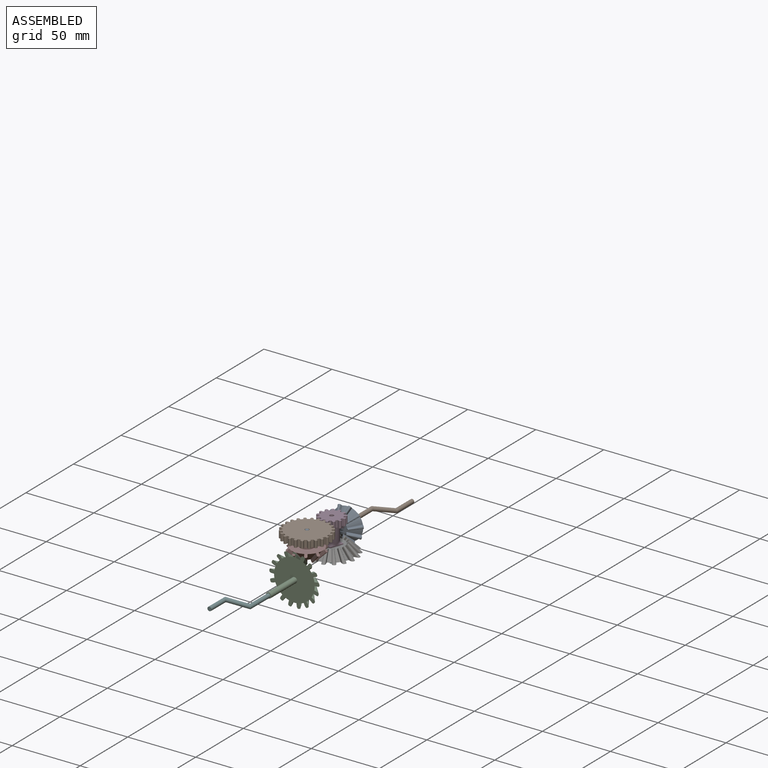
[diagram: assembled view]
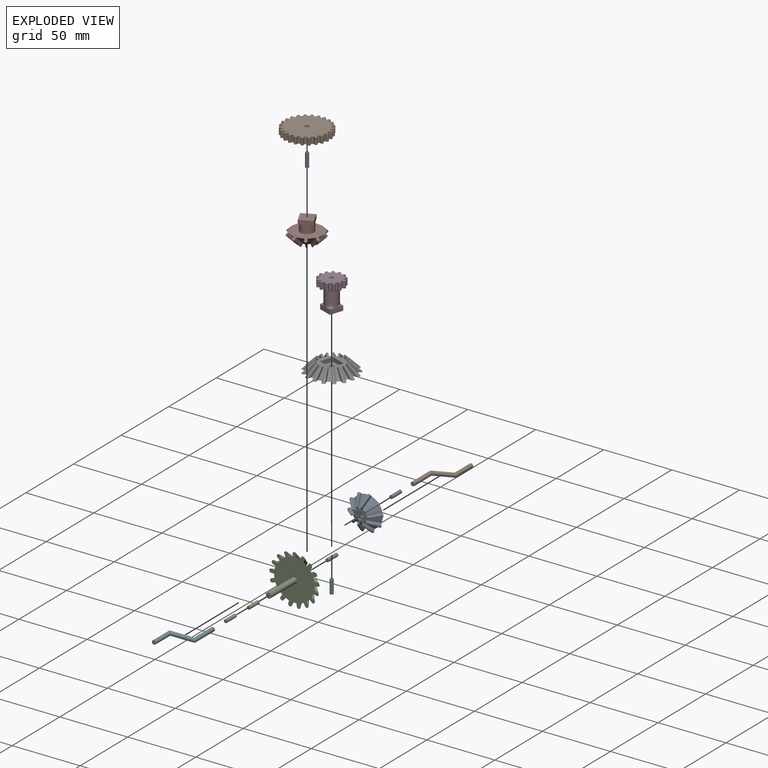
[diagram: exploded view]
GUIDED TOUR — MATED ASSEMBLY (Onshape document efb76f8cd0fd48c595d6d1e4, AutoMate assembly efb76f8cd0fd48c595d6d1e4_96255cc6fc7f05e3776eab63_294cf7662170a65281698371_default)

This assembly has 14 components, labeled P0..P13 below (a component is one placed occurrence of a part; the same part can appear more than once), held together by 10 mates. A mate is a constraint between two components; its type names the relative motion it leaves free:
  FASTENED — locks the two components together rigidly (no relative motion),
  REVOLUTE — leaves rotation about the listed axis free (a hinge).
Axis/direction vectors are unit vectors and 'through' points are millimeter coordinates, both in the assembly's world frame.

MATES
  1. FASTENED "Fastened 4": P5 <-> P2, direction (0.005, 1.000, 0.000) through (-14.91, -80.79, -7.08) mm
  2. REVOLUTE "Revolute 6": P2 <-> P4, axis (-0.005, -1.000, 0.000) through (-14.78, -53.79, -7.08) mm
  3. REVOLUTE "Revolute 3": P1 <-> P8, axis (0.000, 0.000, 1.000) through (-14.04, -41.55, 22.09) mm
  4. FASTENED "Fastened 1": P3 <-> P6, direction (0.000, 0.000, -1.000) through (-13.25, -16.80, 0.70) mm
  5. FASTENED "Fastened 3": P9 <-> P0, direction (0.000, -1.000, 0.000) through (-14.03, 7.47, 9.90) mm
  6. REVOLUTE "Revolute 5": P2 <-> P12, axis (0.005, 1.000, 0.000) through (-14.76, -50.79, -7.08) mm
  7. REVOLUTE "Revolute 2": P6 <-> P13, axis (0.000, 0.000, 1.000) through (-13.25, -16.80, 0.70) mm
  8. REVOLUTE "Revolute 4": P10 <-> P2, axis (-0.005, -1.000, 0.000) through (-14.78, -53.79, -7.08) mm
  9. REVOLUTE "Revolute 1": P11 <-> P0, axis (0.000, -1.000, 0.000) through (-14.03, -5.03, 9.90) mm
  10. FASTENED "Fastened 5": P1 <-> P7, direction (0.000, 0.000, -1.000) through (-14.04, -41.55, 20.09) mm

ASSEMBLY ORDER
  1. P2 — the base component [order heuristic]
  2. P0 — core [order heuristic]
  3. P6 — core [order heuristic]
  4. P7 — core [order heuristic]
  5. P13 [order verified]
  6. P10 [order verified]
  7. P12 [order verified]
  8. P8 [order verified]
  9. P4 [order verified]
  10. P3 [order verified]
  11. P11 [order verified]
  12. P1 [order verified]
  13. P5 [order verified]
  14. P9 [order verified]
(P1, P3, P4 verified with a relaxed clearance tolerance: the source model stores slight part interference there.)
Order-tag legend:
  [order verified] — this step's position reverses a verified removal order: the component was checked to insert without passing through the ones already placed.
  [order heuristic] — the first 4 components form the assembly's core: parts whose collision-free extraction could not be verified, listed in mate-graph order.

Of the 14 components, 6 carry the full construction recipe — the FeatureScript program that regenerates the part's solid from scratch; the rest are supplied as boundary geometry only.
Because this assembly has more than 12 components, the tour below covers the 12 most significant ones individually (every recipe-attached component first, then the largest by part volume), in assembly order; the remaining 2 are summarized together in a grouped section at the end.
Each toured component is shown spotlighted twice — in the assembled view, then in the exploded view, where a leader line traces a displaced component back to its assembled socket (saturated green if recipe-attached, orange if geometry-only; every other component desaturated gray) — followed by its recipe or geometry summary and the mates that hold it.
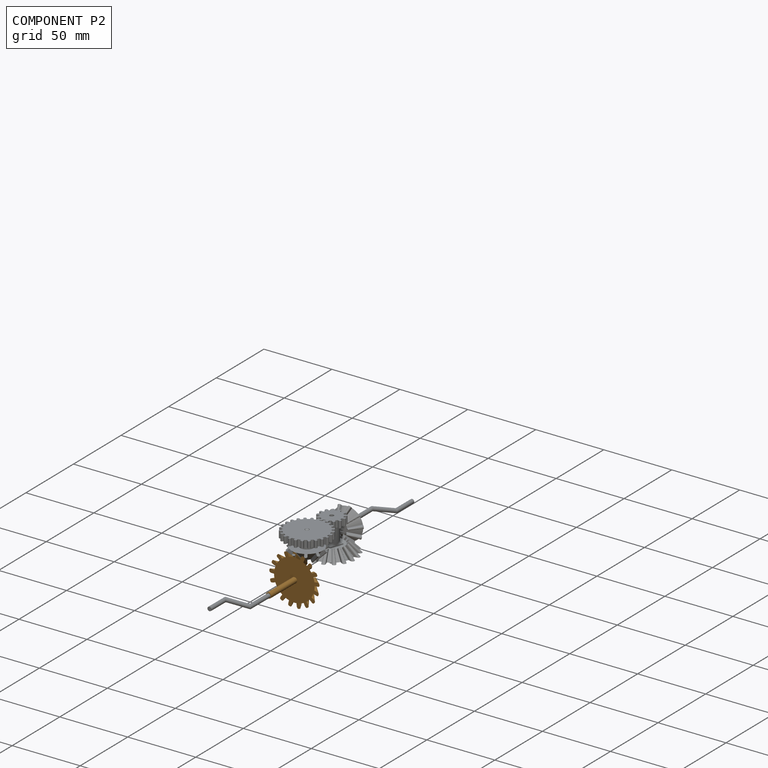
[diagram: component P2 — assembled]
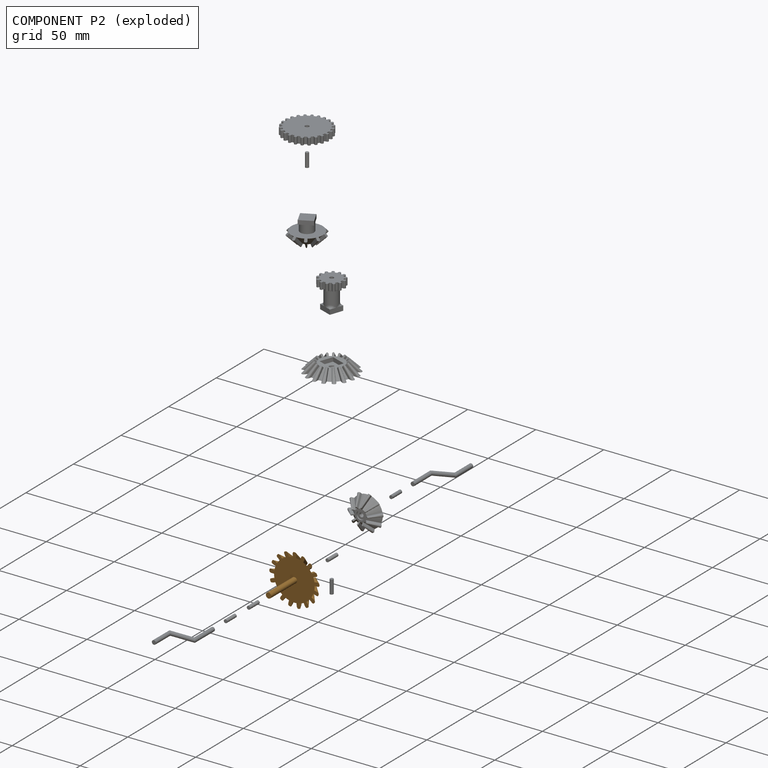
[diagram: component P2 — exploded]
COMPONENT P2 — geometry summary (no construction recipe available for this part):
  bounding box: 61.5 x 60.4 x 35.9 mm
  B-rep topology: 1 solid, 128 faces, 676 edges
  volume: 3559 mm^3 (3% of its bounding box)
Held by: FASTENED mate "Fastened 4" to P5; REVOLUTE mate "Revolute 6" to P4; REVOLUTE mate "Revolute 5" to P12; REVOLUTE mate "Revolute 4" to P10.
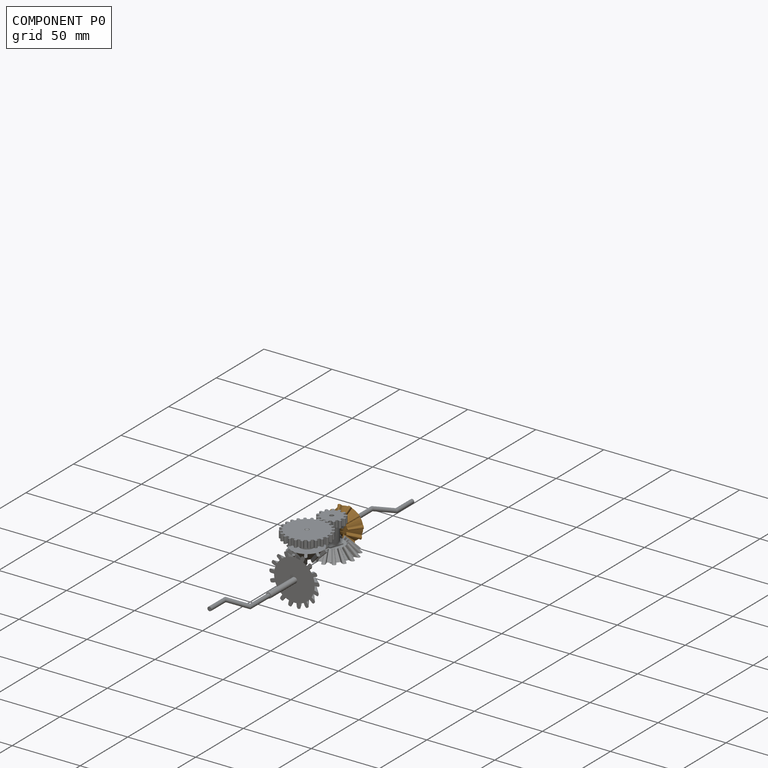
[diagram: component P0 — assembled]
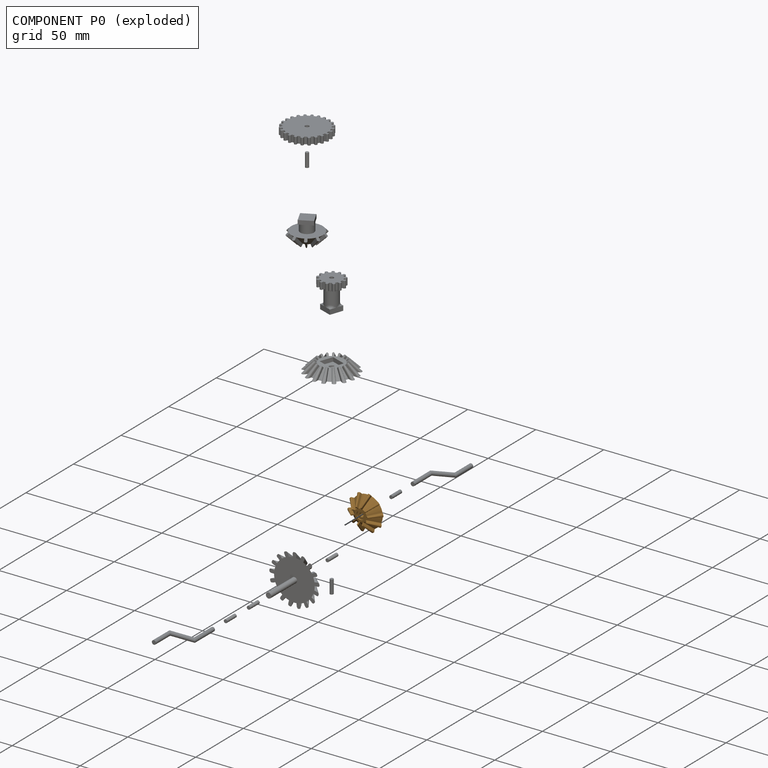
[diagram: component P0 — exploded]
COMPONENT P0 — geometry summary (no construction recipe available for this part):
  bounding box: 32.3 x 32.0 x 16.0 mm
  B-rep topology: 1 solid, 88 faces, 426 edges
  volume: 2420 mm^3 (15% of its bounding box)
  symmetry: 2-fold rotationally symmetric about the y axis
Held by: FASTENED mate "Fastened 3" to P9; REVOLUTE mate "Revolute 1" to P11.
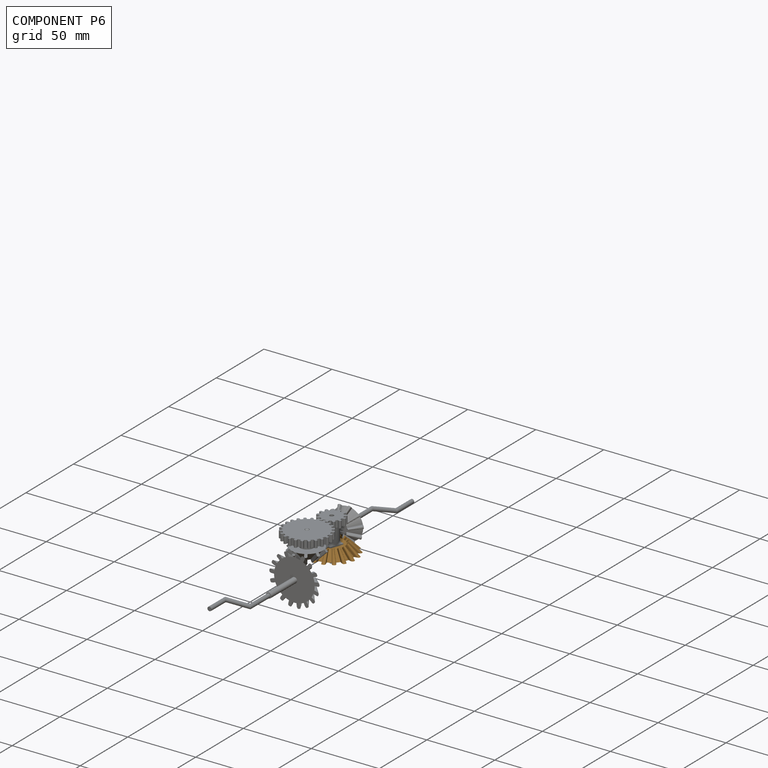
[diagram: component P6 — assembled]
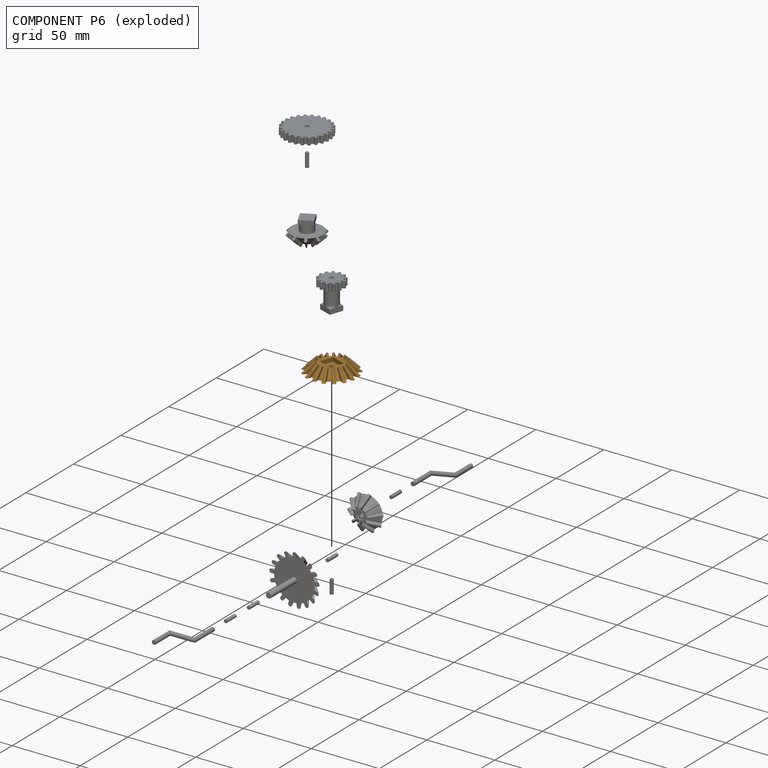
[diagram: component P6 — exploded]
COMPONENT P6 — geometry summary (no construction recipe available for this part):
  bounding box: 61.5 x 60.4 x 21.6 mm
  B-rep topology: 1 solid, 127 faces, 676 edges
  volume: 3183 mm^3 (4% of its bounding box)
Held by: FASTENED mate "Fastened 1" to P3; REVOLUTE mate "Revolute 2" to P13.
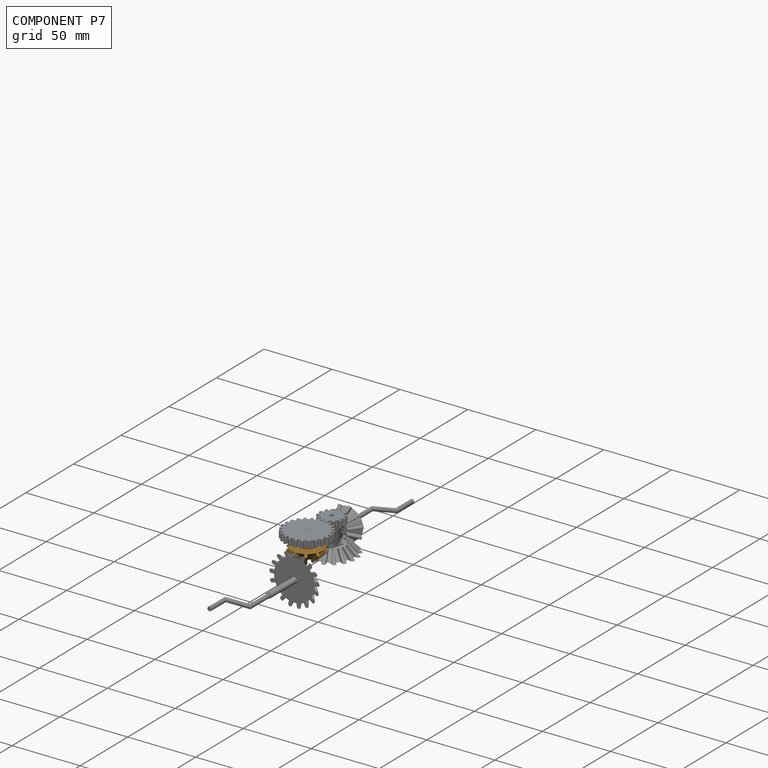
[diagram: component P7 — assembled]
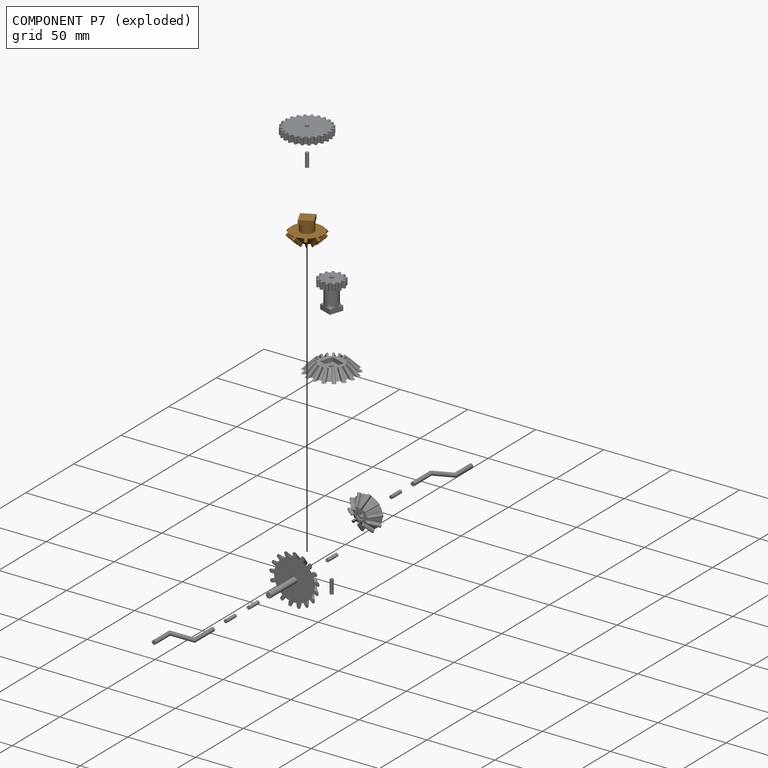
[diagram: component P7 — exploded]
COMPONENT P7 — geometry summary (no construction recipe available for this part):
  bounding box: 32.3 x 32.0 x 18.5 mm
  B-rep topology: 1 solid, 100 faces, 488 edges
  volume: 2533 mm^3 (13% of its bounding box)
  symmetry: 2-fold rotationally symmetric about the y axis
Held by: FASTENED mate "Fastened 5" to P1.
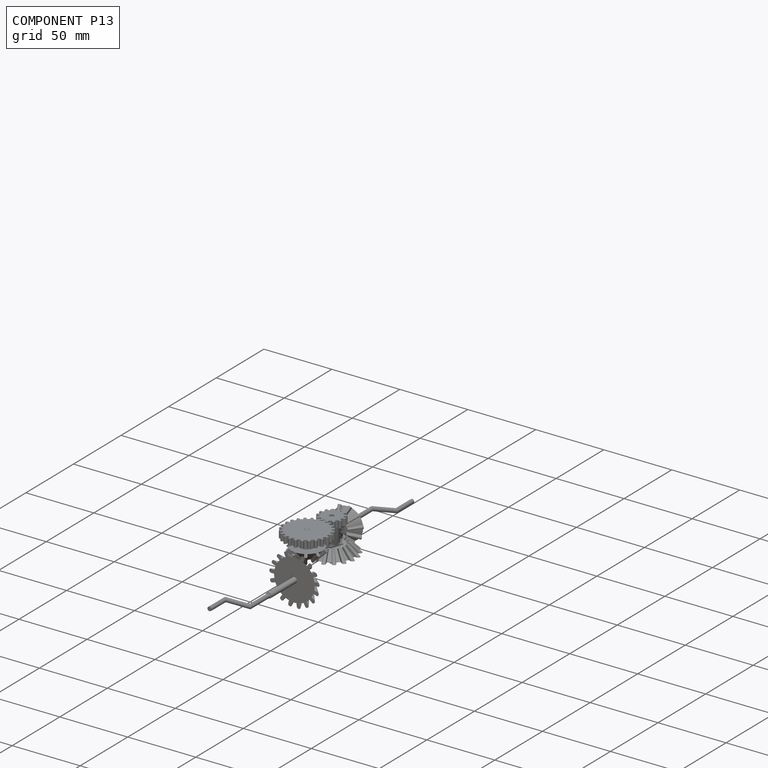
[diagram: component P13 — assembled]
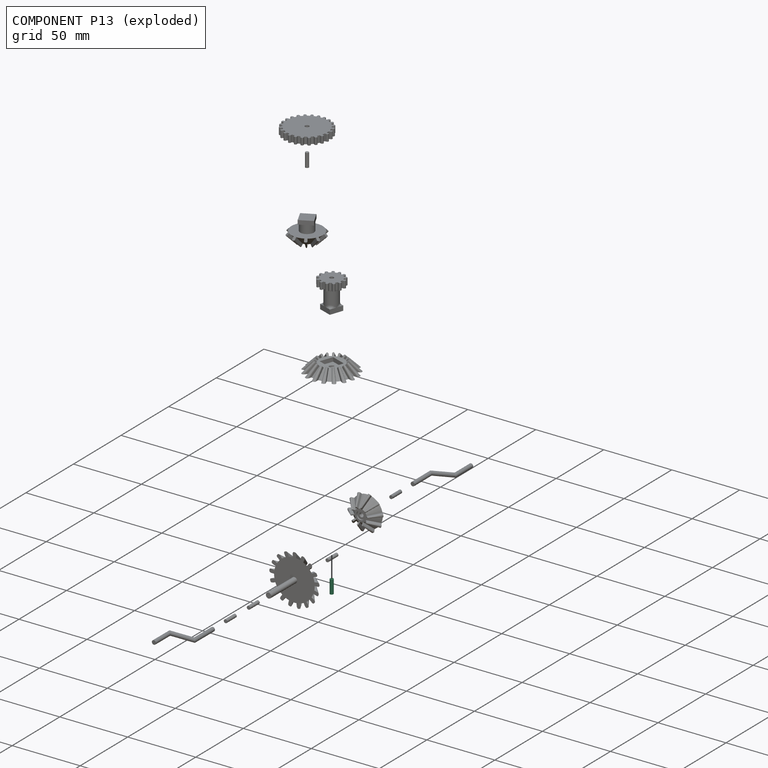
[diagram: component P13 — exploded]
COMPONENT P13 — same part as P4 (CADFS 00523106); its construction recipe is shown at P4.
Held by: REVOLUTE mate "Revolute 2" to P6.
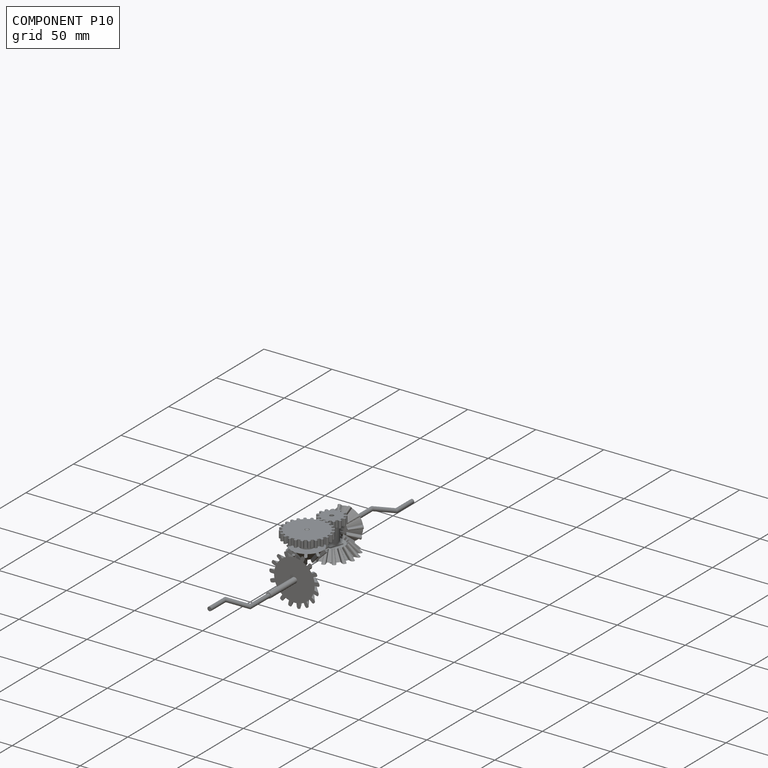
[diagram: component P10 — assembled]
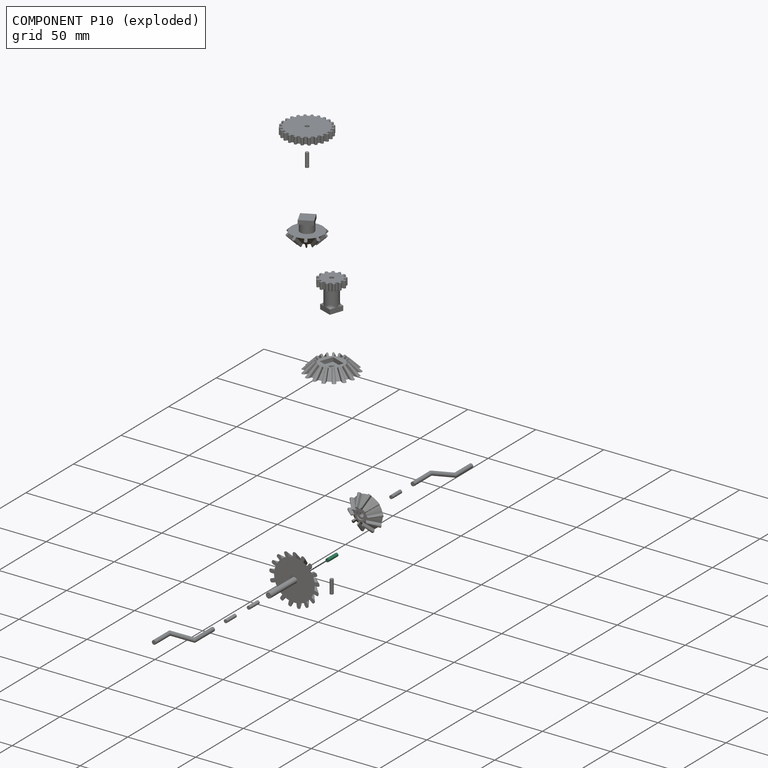
[diagram: component P10 — exploded]
COMPONENT P10 — same part as P4 (CADFS 00523106); its construction recipe is shown at P4.
Held by: REVOLUTE mate "Revolute 4" to P2.
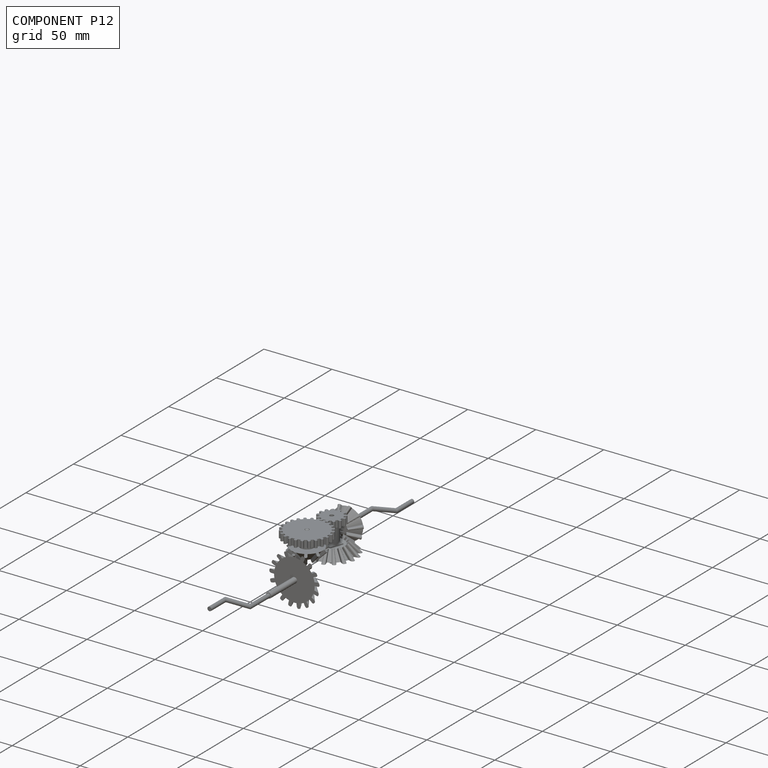
[diagram: component P12 — assembled]
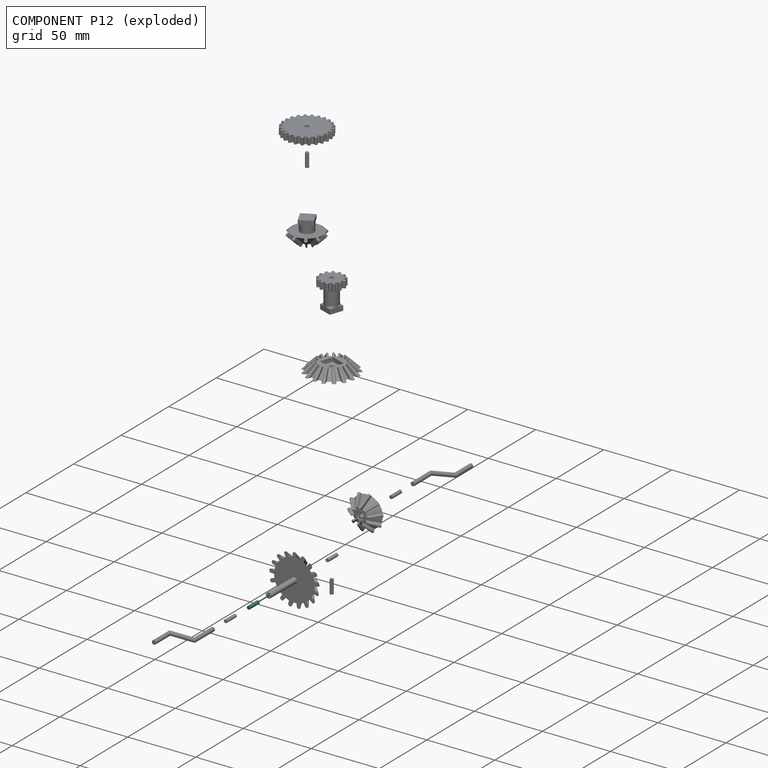
[diagram: component P12 — exploded]
COMPONENT P12 — same part as P4 (CADFS 00523106); its construction recipe is shown at P4.
Held by: REVOLUTE mate "Revolute 5" to P2.
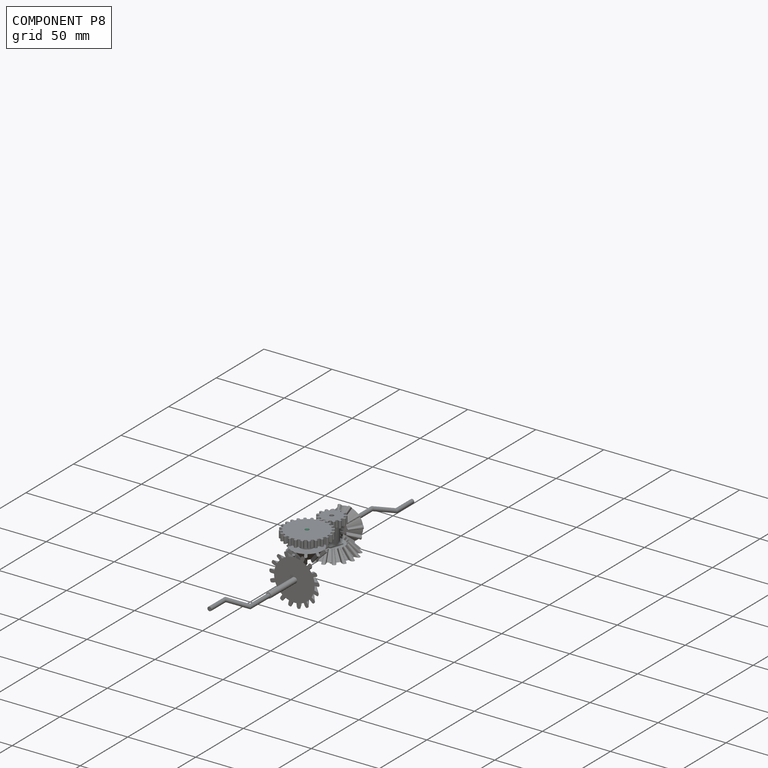
[diagram: component P8 — assembled]
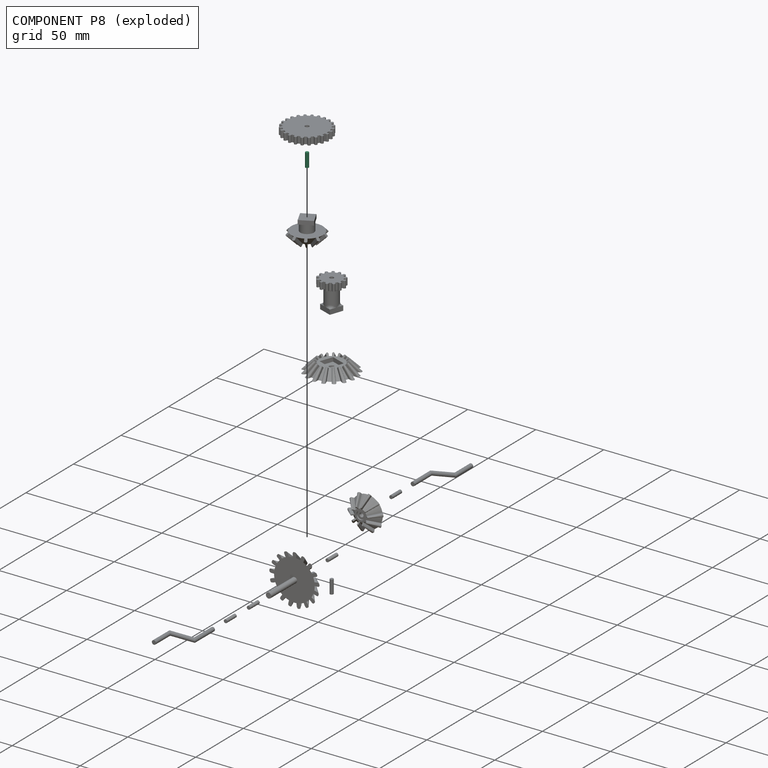
[diagram: component P8 — exploded]
COMPONENT P8 — same part as P4 (CADFS 00523106); its construction recipe is shown at P4.
Held by: REVOLUTE mate "Revolute 3" to P1.
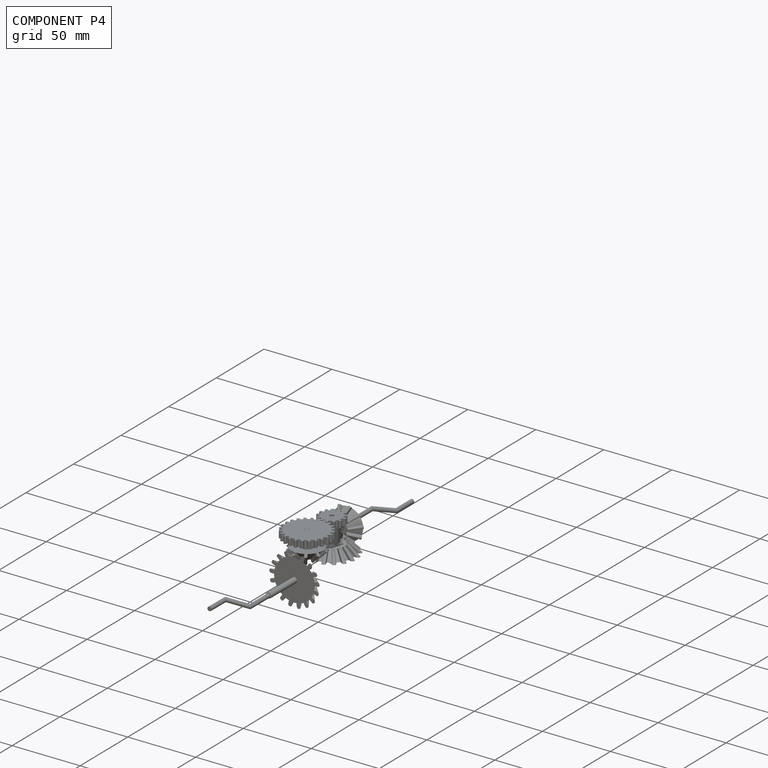
[diagram: component P4 — assembled]
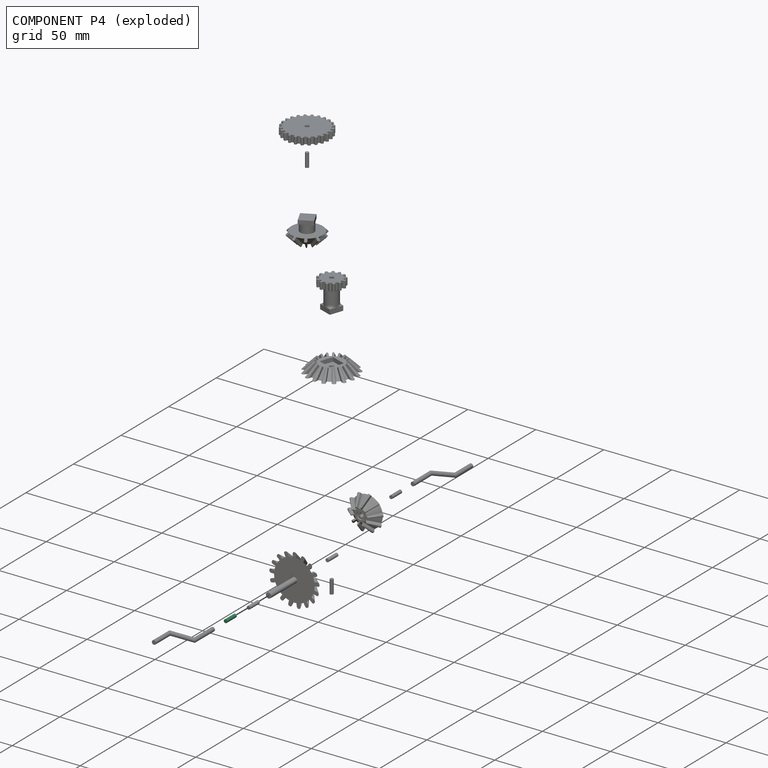
[diagram: component P4 — exploded]
COMPONENT P4 — recipe-attached (CADFS 00523106, mesh-verified: the recipe's output STEP matches this component's geometry to below the mesh-comparison resolution (tessellation chordal tolerance ~0.0159 mm)).
Held by: REVOLUTE mate "Revolute 6" to P2.
Construction recipe (FeatureScript — the CAD program that rebuilds this solid; sketch coordinates are in the units given by the * unit suffixes, e.g. mm):

FeatureScript 1511;
import(path : "onshape/std/geometry.fs", version : "1511.0");
import(path : "onshape/std/common.fs", version : "1511.0");
const mm = millimeter;
const VERTEX = EntityType.VERTEX;
const EDGE = EntityType.EDGE;
const FACE = EntityType.FACE;
const BODY = EntityType.BODY;
function v(x, y){return vector(x, y);}
function OD(order){return orderDisambiguation(order);}
function OSD(set){return originalSetDisambiguation(set);}
function TD(topology){return topologyDisambiguation(topology);}
function TDD(query){return trueDependencyDisambiguation(query);}
function sQuery(a, b, c) {return sketchEntityQuery(a, b, c);}

annotation { "Feature Type Name" : "Feature", "Feature Type Description" : "" }
export const myFeature = defineFeature(function(context is Context, id is Id, definition is map)
    precondition{}
    {
        {
            var Q0;
            Q0=qCreatedBy(makeId("Top.planeOp"),FACE);
            var sketch = newSketch(context, id + "F0", { "sketchPlane" : qUnion([Q0])});
            skCircle(sketch, "E0", {"center": v(0, 0) * mm, "radius": 1.25 * mm});
            skSolve(sketch);
        }
        {
            var Q0;
            Q0 = qSketchRegion(id + "F0", true);
            extrude(context, id + "F1", {"entities" : qUnion([Q0]), "depth" : 10 * mm, "offsetDistance" : 25 * mm});
        }
    });
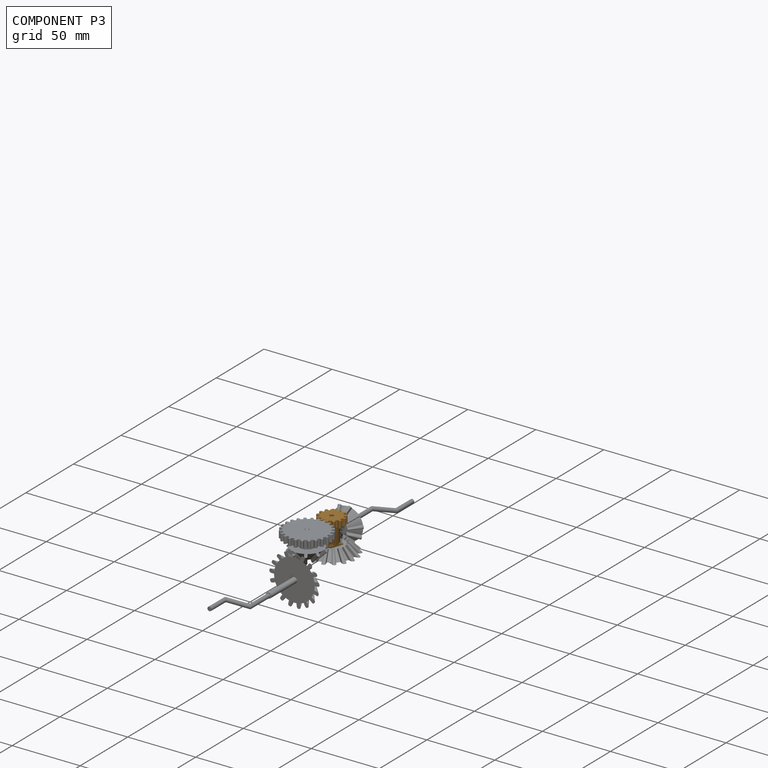
[diagram: component P3 — assembled]
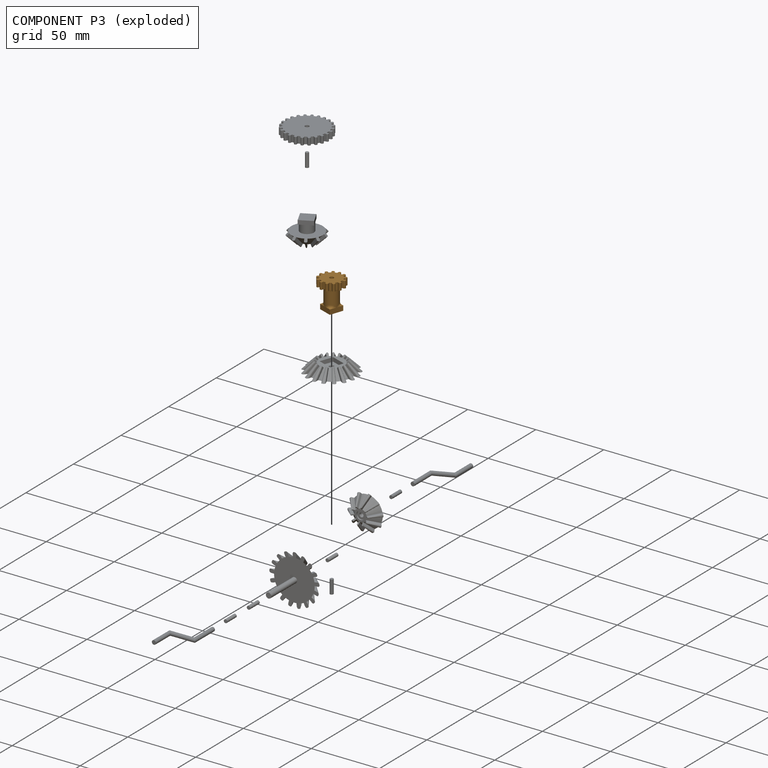
[diagram: component P3 — exploded]
COMPONENT P3 — geometry summary (no construction recipe available for this part):
  bounding box: 21.5 x 18.9 x 18.8 mm
  B-rep topology: 1 solid, 104 faces, 586 edges
  volume: 2372 mm^3 (31% of its bounding box)
  symmetry: mirror-symmetric across its x mid-plane
Held by: FASTENED mate "Fastened 1" to P6.
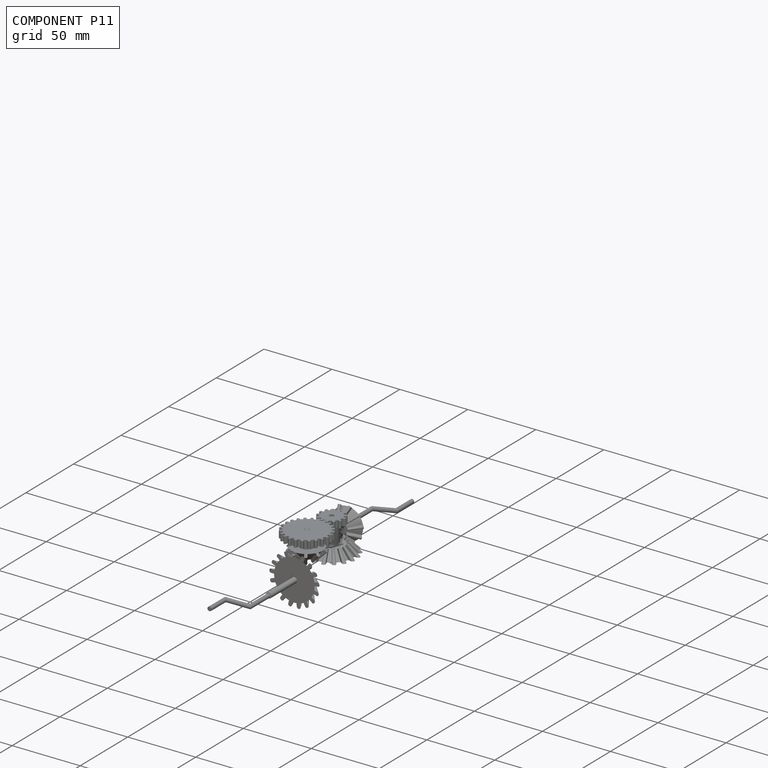
[diagram: component P11 — assembled]
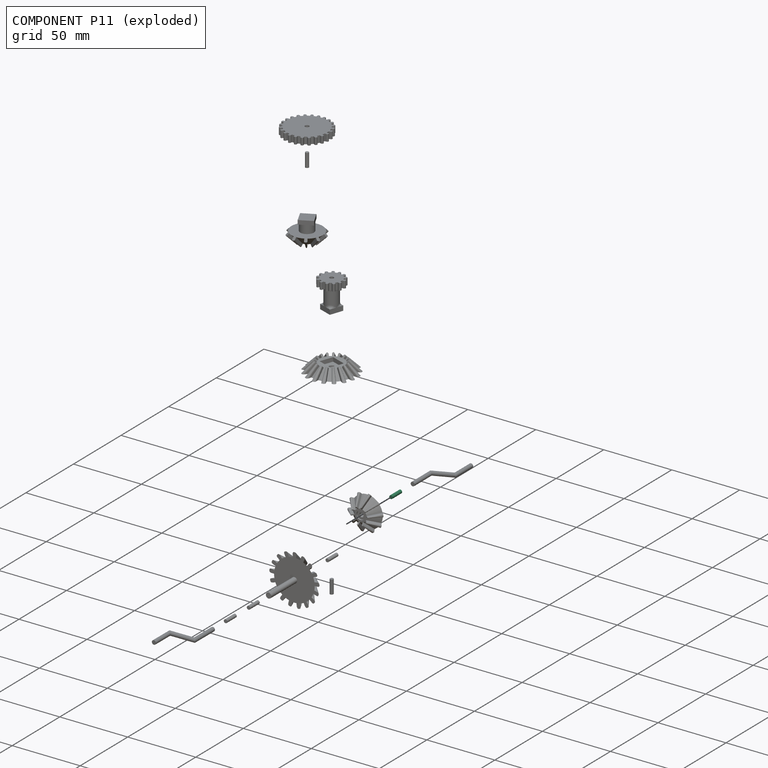
[diagram: component P11 — exploded]
COMPONENT P11 — same part as P4 (CADFS 00523106); its construction recipe is shown at P4.
Held by: REVOLUTE mate "Revolute 1" to P0.
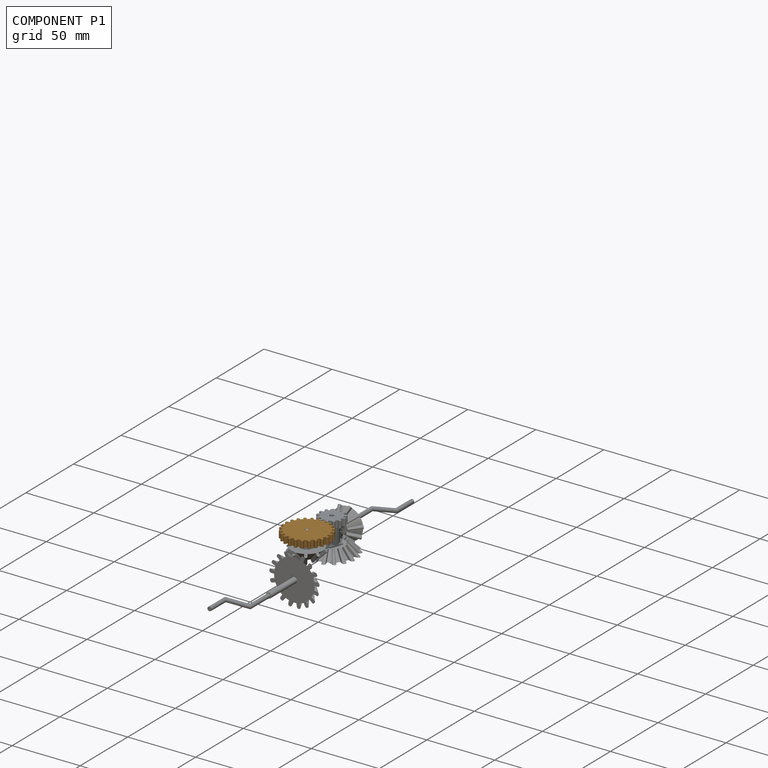
[diagram: component P1 — assembled]
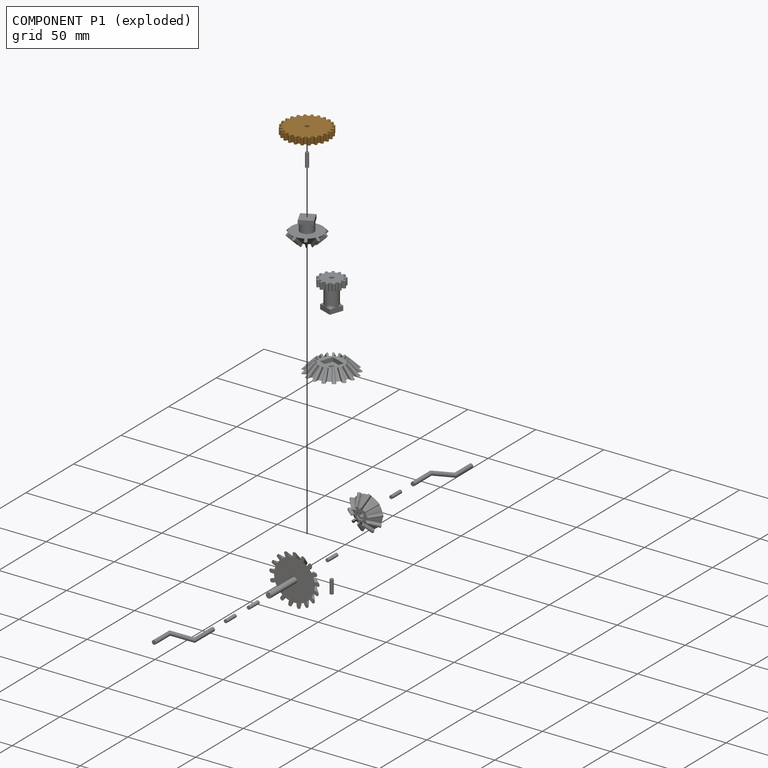
[diagram: component P1 — exploded]
COMPONENT P1 — geometry summary (no construction recipe available for this part):
  bounding box: 34.0 x 34.0 x 5.0 mm
  B-rep topology: 1 solid, 154 faces, 1060 edges
  volume: 3595 mm^3 (62% of its bounding box)
  symmetry: 4-fold rotationally symmetric about the z axis
Held by: REVOLUTE mate "Revolute 3" to P8; FASTENED mate "Fastened 5" to P7.
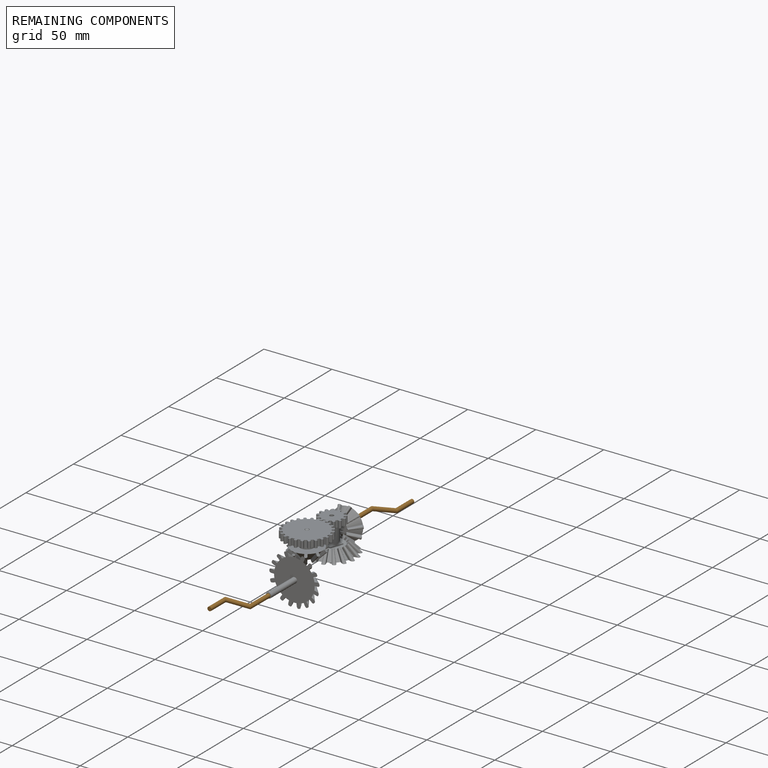
[diagram: remaining components — assembled]
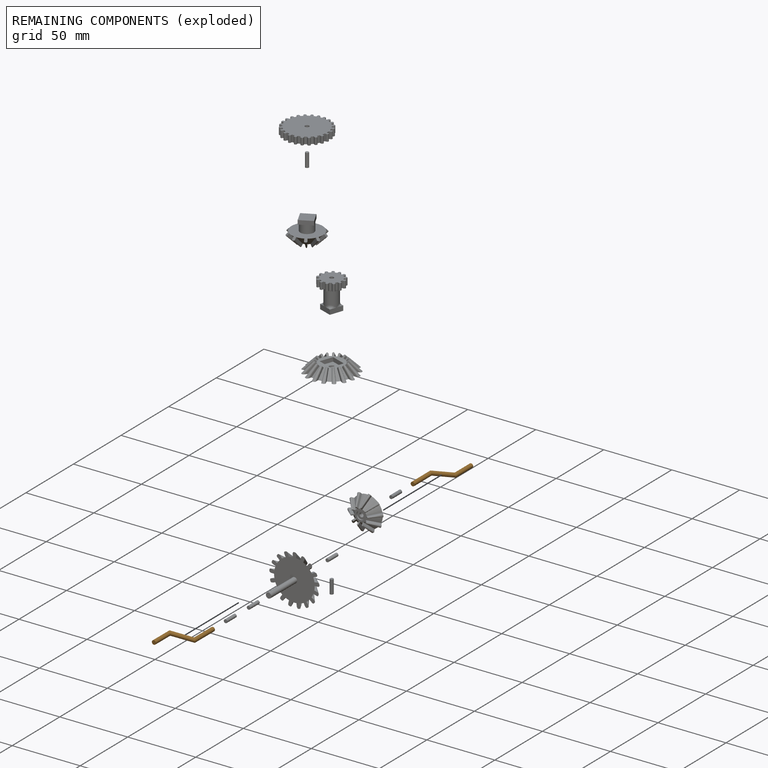
[diagram: remaining components — exploded]
REMAINING COMPONENTS (grouped) — the 2 components below fall outside the per-component tour by the significance rule stated above; both spotlight views highlight the whole group.
  P5: bounding box 35.9 x 21.2 x 3.0 mm, volume 378 mm^3. Held by: FASTENED mate "Fastened 4" to P2.
  P9: bounding box 35.9 x 21.2 x 3.0 mm, volume 378 mm^3. Held by: FASTENED mate "Fastened 3" to P0.
PROVENANCE & LICENSES
Assembly (occurrences, transforms, mates, per-part STEP geometry): AutoMate dataset, Zenodo record 7776208, CC0.
Construction recipes: CADFS (HuggingFace VladPyatov/CADFS, CC-BY-4.0, layered over the ABC dataset), FeatureScript reconstruction programs keyed by ABC model id.
Join: ABC meta listings map ABC model id -> Onshape documentId; within a shared document, parts are matched by geometric signature (bounding-box dims + volume at 0.1% relative tolerance, exact B-rep face/solid counts).
Verification: 6 of this assembly's 14 components carry a recipe attachment, and every attachment is mesh-verified: the CADFS STEP and the AutoMate member STEP were compared as meshes in their shared local frame (symmetric sampled-point-to-mesh distance); worst across the 6 attachments: below the mesh-comparison resolution (tessellation chordal tolerance ~0.0159 mm) on a 11 mm part.
Renders: orthographic iso camera (az 35 / el 25); the floor grid conveys scale (grid pitch printed in each image; no ruler). In the exploded view each component is displaced by its stored offset vector: the offsets alone carry the explosion direction (mate normal/axis signs are not orientation cues and do not encode it), and separation distances are assigned per mate-chain, not proportionally to assembly-order depth.
